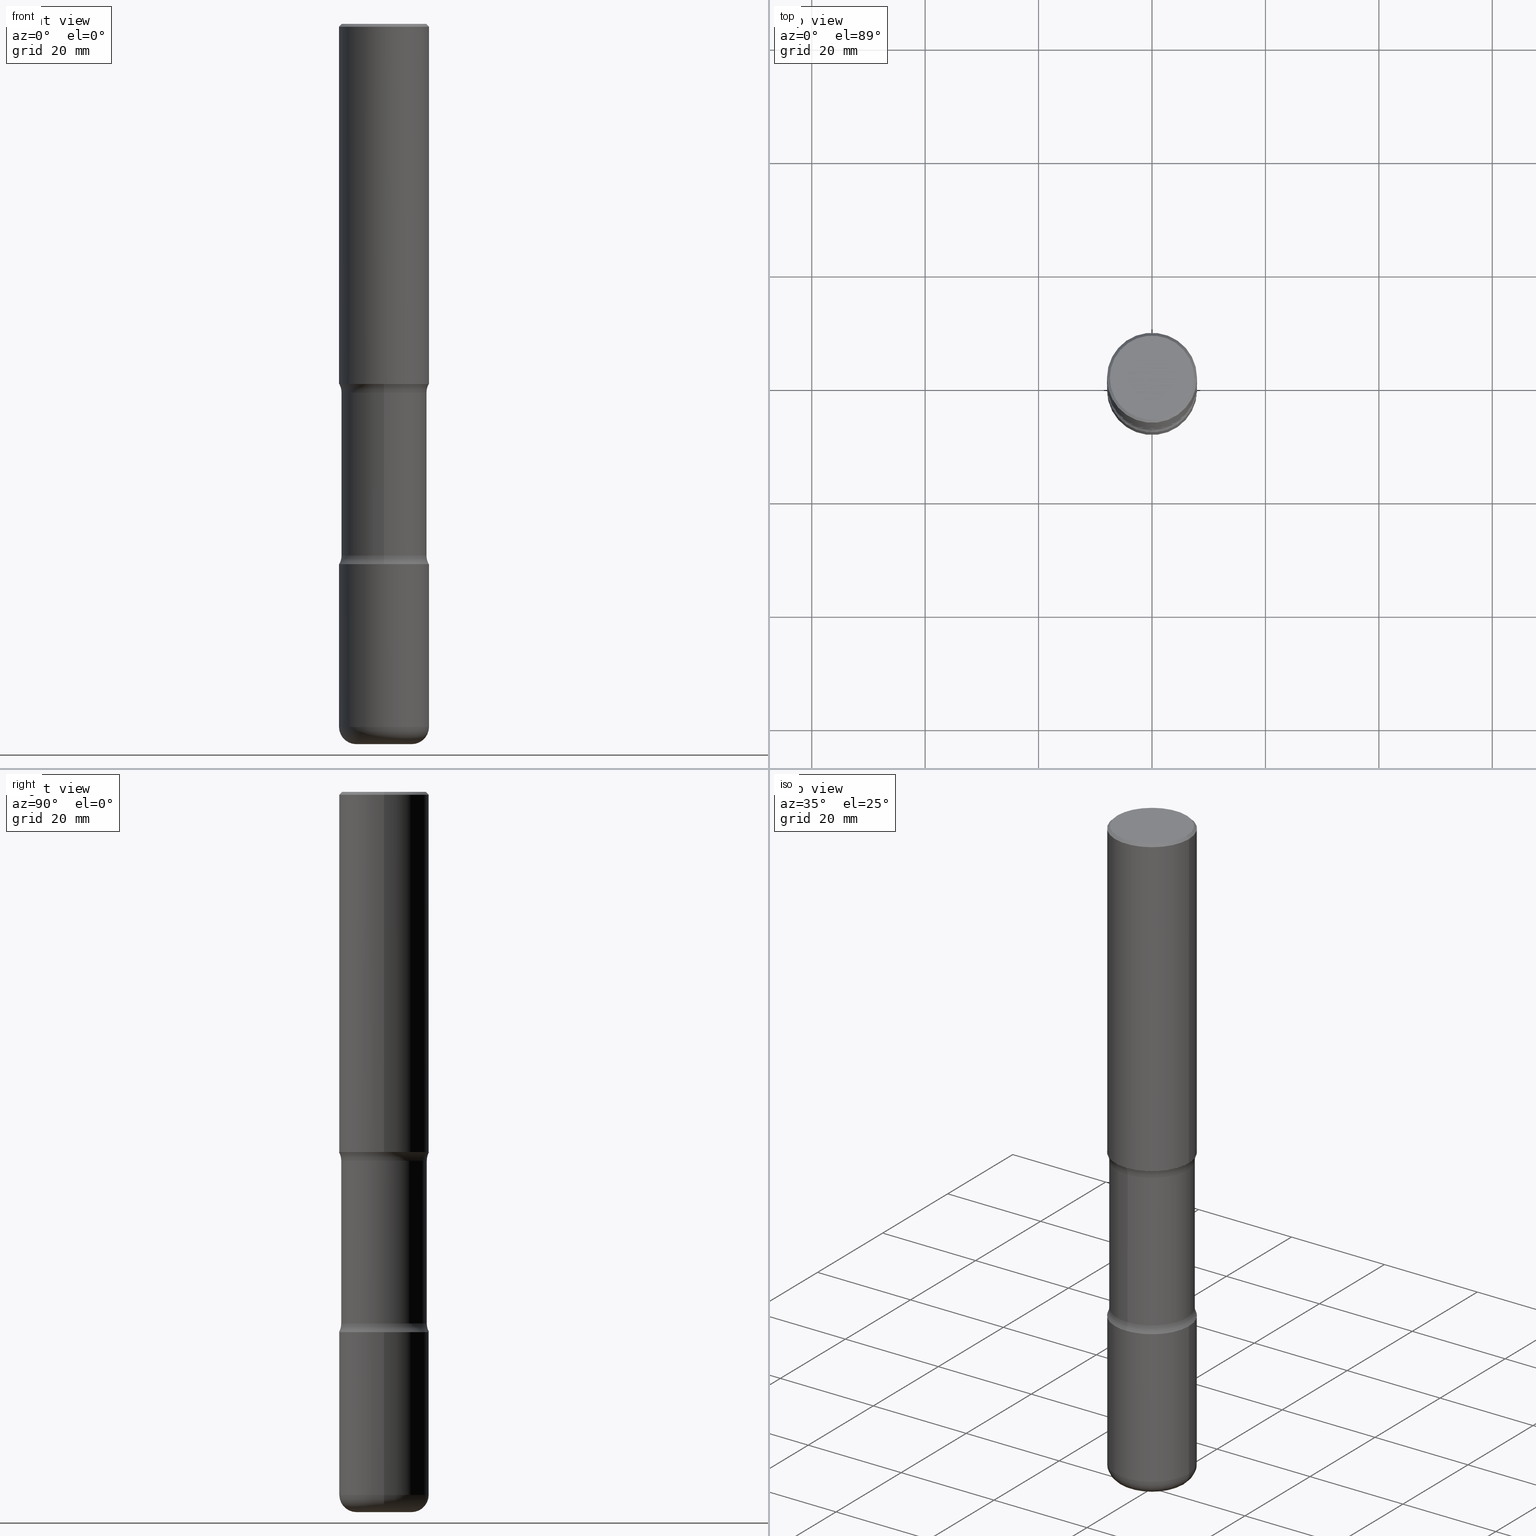
[diagram: canonical four-view strip — front | top / right | iso, engineering-drawing reading convention]
A machine part, canonical four-view strip (front | top / right | iso — engineering-drawing reading convention). The complete STEP part file that produces these views, byte-faithful:
ISO-10303-21;
HEADER;
FILE_DESCRIPTION (( 'STEP AP203' ),
    '1' );
FILE_NAME ('37916.STEP',
    '2024-03-02T01:23:08',
    ( '' ),
    ( '' ),
    'SwSTEP 2.0',
    'SolidWorks 2023',
    '' );
FILE_SCHEMA (( 'CONFIG_CONTROL_DESIGN' ));
ENDSEC;

DATA;
#1 = DIRECTION ( 'NONE',  ( -1.000000000000000000, 6.982962677686265922E-15, -4.876176775795935793E-29 ) ) ;
#2 = EDGE_LOOP ( 'NONE', ( #138, #54, #388, #434 ) ) ;
#3 = CONICAL_SURFACE ( 'NONE', #266, 0.3124999999999998890, 0.7853981633974479459 ) ;
#4 = CIRCLE ( 'NONE', #58, 0.3124999999999998890 ) ;
#5 = DIRECTION ( 'NONE',  ( 1.000000000000000000, -6.860497997771530774E-15, 4.842131541558068249E-29 ) ) ;
#6 = ORIENTED_EDGE ( 'NONE', *, *, #40, .T. ) ;
#7 = DIRECTION ( 'NONE',  ( -2.445468806185136597E-29, 3.491481338843145583E-15, 1.000000000000000000 ) ) ;
#8 = ORIENTED_EDGE ( 'NONE', *, *, #362, .F. ) ;
#9 = DIRECTION ( 'NONE',  ( 7.105427357601001859E-15, 1.000000000000000000, -3.491481338843145583E-15 ) ) ;
#10 = VERTEX_POINT ( 'NONE', #311 ) ;
#11 = AXIS2_PLACEMENT_3D ( 'NONE', #115, #515, #458 ) ;
#12 = DIRECTION ( 'NONE',  ( -0.7071067811865472397, 2.468850131082253905E-15, -0.7071067811865477948 ) ) ;
#13 = AXIS2_PLACEMENT_3D ( 'NONE', #62, #450, #314 ) ;
#14 = ORIENTED_EDGE ( 'NONE', *, *, #188, .F. ) ;
#15 = EDGE_CURVE ( 'NONE', #213, #131, #76, .T. ) ;
#16 = CARTESIAN_POINT ( 'NONE',  ( -2.894272592809803347E-15, -0.4218750000000091593, -2.560515364784489378 ) ) ;
#17 = DIRECTION ( 'NONE',  ( 6.982962677686265133E-15, 1.000000000000000000, -3.496765431890254947E-15 ) ) ;
#18 = CARTESIAN_POINT ( 'NONE',  ( 9.017921104037724021E-29, -1.288835204215942242E-14, -3.689484635215508401 ) ) ;
#19 = CARTESIAN_POINT ( 'NONE',  ( 0.000000000000000000, 0.000000000000000000, 0.000000000000000000 ) ) ;
#20 = ADVANCED_FACE ( 'NONE', ( #402 ), #238, .T. ) ;
#21 = VECTOR ( 'NONE', #168, 39.37007874015748143 ) ;
#22 = CARTESIAN_POINT ( 'NONE',  ( 0.3125000000000000000, -2.182175836776958347E-15, 1.523805242436230075E-29 ) ) ;
#23 =( GEOMETRIC_REPRESENTATION_CONTEXT ( 3 ) GLOBAL_UNCERTAINTY_ASSIGNED_CONTEXT ( ( #285 ) ) GLOBAL_UNIT_ASSIGNED_CONTEXT ( ( #310, #55, #231 ) ) REPRESENTATION_CONTEXT ( 'NONE', 'WORKASPACE' ) );
#24 = APPLICATION_CONTEXT ( 'configuration controlled 3d designs of mechanical parts and assemblies' ) ;
#25 = PERSON_AND_ORGANIZATION ( #323, #556 ) ;
#26 = EDGE_CURVE ( 'NONE', #121, #471, #140, .T. ) ;
#27 = DIRECTION ( 'NONE',  ( 2.445468806185136597E-29, -3.491481338843145583E-15, -1.000000000000000000 ) ) ;
#28 = CALENDAR_DATE ( 2024, 1, 3 ) ;
#29 = DIRECTION ( 'NONE',  ( -2.445468806185136597E-29, 3.491481338843145583E-15, 1.000000000000000000 ) ) ;
#30 = COORDINATED_UNIVERSAL_TIME_OFFSET ( 5, 0, .BEHIND. ) ;
#31 = DIRECTION ( 'NONE',  ( -2.445468806185136597E-29, 3.491481338843145583E-15, 1.000000000000000000 ) ) ;
#32 = VECTOR ( 'NONE', #325, 39.37007874015748143 ) ;
#33 = ORIENTED_EDGE ( 'NONE', *, *, #357, .F. ) ;
#34 = AXIS2_PLACEMENT_3D ( 'NONE', #400, #153, #271 ) ;
#35 = EDGE_CURVE ( 'NONE', #10, #47, #308, .T. ) ;
#36 = DIRECTION ( 'NONE',  ( 1.000000000000000000, -6.982962677686258822E-15, 0.000000000000000000 ) ) ;
#37 = PRODUCT_DEFINITION ( 'UNKNOWN', '', #283, #95 ) ;
#38 = DATE_AND_TIME ( #548, #404 ) ;
#39 = CARTESIAN_POINT ( 'NONE',  ( -0.1925000000000002820, -1.545379740609088424E-14, -5.000000000000000000 ) ) ;
#40 = EDGE_CURVE ( 'NONE', #516, #220, #492, .T. ) ;
#41 = DIRECTION ( 'NONE',  ( -2.445468806185136597E-29, 3.491481338843145583E-15, 1.000000000000000000 ) ) ;
#42 = AXIS2_PLACEMENT_3D ( 'NONE', #259, #226, #349 ) ;
#43 = VECTOR ( 'NONE', #12, 39.37007874015748143 ) ;
#44 = CARTESIAN_POINT ( 'NONE',  ( 4.890937612370289799E-31, -6.982962677686315028E-17, -0.02000000000000006981 ) ) ;
#45 = ORIENTED_EDGE ( 'NONE', *, *, #109, .T. ) ;
#46 = CARTESIAN_POINT ( 'NONE',  ( -0.3124999999999998890, 2.112346210000094260E-15, -0.02000000000000006981 ) ) ;
#47 = VERTEX_POINT ( 'NONE', #241 ) ;
#48 = DIRECTION ( 'NONE',  ( 1.000000000000000000, -6.982962677686269077E-15, 0.000000000000000000 ) ) ;
#49 = ORIENTED_EDGE ( 'NONE', *, *, #179, .F. ) ;
#50 = ADVANCED_FACE ( 'NONE', ( #57 ), #202, .T. ) ;
#51 = CARTESIAN_POINT ( 'NONE',  ( 6.113672015462840371E-29, -8.728703347107863365E-15, -2.499999999999999556 ) ) ;
#52 = ORIENTED_EDGE ( 'NONE', *, *, #64, .T. ) ;
#53 = DIRECTION ( 'NONE',  ( -1.000000000000000000, 6.982962677686266711E-15, 0.000000000000000000 ) ) ;
#54 = ORIENTED_EDGE ( 'NONE', *, *, #225, .F. ) ;
#55 =( NAMED_UNIT ( * ) PLANE_ANGLE_UNIT ( ) SI_UNIT ( $, .RADIAN. ) );
#56 = ADVANCED_FACE ( 'NONE', ( #232 ), #275, .F. ) ;
#57 = FACE_OUTER_BOUND ( 'NONE', #272, .T. ) ;
#58 = AXIS2_PLACEMENT_3D ( 'NONE', #297, #393, #130 ) ;
#59 = DIRECTION ( 'NONE',  ( -2.445468806185136597E-29, 3.491481338843145583E-15, 1.000000000000000000 ) ) ;
#60 = EDGE_LOOP ( 'NONE', ( #439, #525, #301, #268 ) ) ;
#61 = PRODUCT_RELATED_PRODUCT_CATEGORY ( 'detail', '', ( #170 ) ) ;
#62 = CARTESIAN_POINT ( 'NONE',  ( 9.022519586318873617E-29, -1.288176675380345821E-14, -3.689484635215508401 ) ) ;
#63 = DIRECTION ( 'NONE',  ( 6.982962677686265922E-15, 1.000000000000000000, -3.382661233743974681E-15 ) ) ;
#64 = EDGE_CURVE ( 'NONE', #220, #66, #401, .T. ) ;
#65 = CYLINDRICAL_SURFACE ( 'NONE', #78, 0.3125000000000000000 ) ;
#66 = VERTEX_POINT ( 'NONE', #110 ) ;
#67 = DIRECTION ( 'NONE',  ( 1.000000000000000000, -6.982962677686266711E-15, 4.876176775795936353E-29 ) ) ;
#68 = FACE_OUTER_BOUND ( 'NONE', #100, .T. ) ;
#69 = APPROVAL_PERSON_ORGANIZATION ( #419, #251, #368 ) ;
#70 = CARTESIAN_POINT ( 'NONE',  ( -0.3125000000000002220, -2.178820437692046306E-15, -2.499999999999999556 ) ) ;
#71 = APPROVAL_ROLE ( '' ) ;
#72 = DIRECTION ( 'NONE',  ( -6.982962677686266711E-15, -1.000000000000000000, 0.000000000000000000 ) ) ;
#73 = VERTEX_POINT ( 'NONE', #541 ) ;
#74 = PERSON_AND_ORGANIZATION_ROLE ( 'classification_officer' ) ;
#75 = DIRECTION ( 'NONE',  ( -1.000000000000000000, 6.982962677686266711E-15, 0.000000000000000000 ) ) ;
#76 = CIRCLE ( 'NONE', #555, 0.3125000000000002776 ) ;
#77 = ORIENTED_EDGE ( 'NONE', *, *, #26, .F. ) ;
#78 = AXIS2_PLACEMENT_3D ( 'NONE', #19, #186, #67 ) ;
#79 = CARTESIAN_POINT ( 'NONE',  ( 0.3125000000000002220, -2.182175836776959925E-15, 1.523805242436231196E-29 ) ) ;
#80 = EDGE_CURVE ( 'NONE', #478, #73, #278, .T. ) ;
#81 = FACE_OUTER_BOUND ( 'NONE', #347, .T. ) ;
#82 = EDGE_CURVE ( 'NONE', #444, #208, #273, .T. ) ;
#83 = DIRECTION ( 'NONE',  ( 6.982962677686266711E-15, 1.000000000000000000, -3.680805717779217644E-15 ) ) ;
#84 = VERTEX_POINT ( 'NONE', #451 ) ;
#85 = VECTOR ( 'NONE', #212, 39.37007874015748143 ) ;
#86 = CLOSED_SHELL ( 'NONE', ( #552, #495, #386, #391, #50, #96 ) ) ;
#87 = AXIS2_PLACEMENT_3D ( 'NONE', #191, #269, #405 ) ;
#88 = DIRECTION ( 'NONE',  ( 1.000000000000000000, -6.982962677686265922E-15, 4.876176775795935793E-29 ) ) ;
#89 = ORIENTED_EDGE ( 'NONE', *, *, #498, .F. ) ;
#90 = FACE_OUTER_BOUND ( 'NONE', #432, .T. ) ;
#91 = ORIENTED_EDGE ( 'NONE', *, *, #80, .F. ) ;
#92 = ADVANCED_FACE ( 'NONE', ( #68 ), #326, .T. ) ;
#93 = DIRECTION ( 'NONE',  ( 2.521457479434076939E-29, -3.382661233743975076E-15, -1.000000000000000000 ) ) ;
#94 = VERTEX_POINT ( 'NONE', #39 ) ;
#95 = DESIGN_CONTEXT ( 'detailed design', #24, 'design' ) ;
#96 = ADVANCED_FACE ( 'NONE', ( #332 ), #460, .F. ) ;
#97 = AXIS2_PLACEMENT_3D ( 'NONE', #219, #129, #521 ) ;
#98 = AXIS2_PLACEMENT_3D ( 'NONE', #102, #150, #196 ) ;
#99 = CYLINDRICAL_SURFACE ( 'NONE', #161, 0.2968750000000000000 ) ;
#100 = EDGE_LOOP ( 'NONE', ( #105, #77, #397, #560 ) ) ;
#101 = EDGE_CURVE ( 'NONE', #471, #73, #286, .T. ) ;
#102 = CARTESIAN_POINT ( 'NONE',  ( 0.000000000000000000, 0.000000000000000000, 0.000000000000000000 ) ) ;
#103 = DIRECTION ( 'NONE',  ( 2.521457479434076939E-29, -3.382661233743975076E-15, -1.000000000000000000 ) ) ;
#104 = LENGTH_MEASURE_WITH_UNIT ( LENGTH_MEASURE( 0.02539999999999999897 ), #318 );
#105 = ORIENTED_EDGE ( 'NONE', *, *, #101, .F. ) ;
#106 = CIRCLE ( 'NONE', #500, 0.1925000000000002820 ) ;
#107 = AXIS2_PLACEMENT_3D ( 'NONE', #133, #7, #48 ) ;
#108 = ORIENTED_EDGE ( 'NONE', *, *, #82, .F. ) ;
#109 = EDGE_CURVE ( 'NONE', #84, #208, #355, .T. ) ;
#110 = CARTESIAN_POINT ( 'NONE',  ( 2.073067044938200360E-15, 0.2968749999999871214, -3.689484635215509289 ) ) ;
#111 = DIRECTION ( 'NONE',  ( 6.860497997771529985E-15, 1.000000000000000000, 0.000000000000000000 ) ) ;
#112 = DIRECTION ( 'NONE',  ( -6.982962677686266711E-15, -1.000000000000000000, 3.491481338843145583E-15 ) ) ;
#113 = PERSON_AND_ORGANIZATION_ROLE ( 'creator' ) ;
#114 = AXIS2_PLACEMENT_3D ( 'NONE', #367, #112, #280 ) ;
#115 = CARTESIAN_POINT ( 'NONE',  ( 9.170508023194261117E-29, -1.309305502066179584E-14, -3.749999999999999556 ) ) ;
#116 = AXIS2_PLACEMENT_3D ( 'NONE', #488, #448, #409 ) ;
#117 = APPROVAL_STATUS ( 'not_yet_approved' ) ;
#118 = EDGE_CURVE ( 'NONE', #192, #363, #385, .T. ) ;
#119 = DIRECTION ( 'NONE',  ( -1.000000000000000000, 6.982962677686265922E-15, -4.883557194083112340E-29 ) ) ;
#120 = CARTESIAN_POINT ( 'NONE',  ( 0.000000000000000000, 0.000000000000000000, 0.000000000000000000 ) ) ;
#121 = VERTEX_POINT ( 'NONE', #553 ) ;
#122 = COORDINATED_UNIVERSAL_TIME_OFFSET ( 5, 0, .BEHIND. ) ;
#123 = CARTESIAN_POINT ( 'NONE',  ( 9.017921104037724021E-29, -1.288835204215942242E-14, -3.689484635215508401 ) ) ;
#124 = TOROIDAL_SURFACE ( 'NONE', #97, 0.4218750000000000555, 0.1250000000000000000 ) ;
#125 = AXIS2_PLACEMENT_3D ( 'NONE', #135, #351, #173 ) ;
#126 = DATE_TIME_ROLE ( 'classification_date' ) ;
#127 = CARTESIAN_POINT ( 'NONE',  ( 9.170508023194261117E-29, -1.309305502066179584E-14, -3.749999999999999556 ) ) ;
#128 = ORIENTED_EDGE ( 'NONE', *, *, #545, .T. ) ;
#129 = DIRECTION ( 'NONE',  ( 2.521457479434076939E-29, -3.382661233743975076E-15, -1.000000000000000000 ) ) ;
#130 = DIRECTION ( 'NONE',  ( 1.000000000000000000, -6.982962677686266711E-15, 0.000000000000000000 ) ) ;
#131 = VERTEX_POINT ( 'NONE', #506 ) ;
#132 = CIRCLE ( 'NONE', #364, 0.1250000000000000000 ) ;
#133 = CARTESIAN_POINT ( 'NONE',  ( 1.193388777418346668E-28, -1.703842893355455010E-14, -4.880000000000000782 ) ) ;
#134 = ORIENTED_EDGE ( 'NONE', *, *, #240, .T. ) ;
#135 = CARTESIAN_POINT ( 'NONE',  ( 6.113672015462840371E-29, -8.728703347107863365E-15, -2.499999999999999556 ) ) ;
#136 = EDGE_LOOP ( 'NONE', ( #544, #344 ) ) ;
#137 = CARTESIAN_POINT ( 'NONE',  ( -2.894272592809775342E-15, -0.4218750000000130451, -3.689484635215506625 ) ) ;
#138 = ORIENTED_EDGE ( 'NONE', *, *, #545, .F. ) ;
#139 = EDGE_CURVE ( 'NONE', #363, #73, #547, .T. ) ;
#140 = CIRCLE ( 'NONE', #421, 0.2924999999999998157 ) ;
#141 = LOCAL_TIME ( 20, 23, 8.000000000000000000, #205 ) ;
#142 = ORIENTED_EDGE ( 'NONE', *, *, #374, .T. ) ;
#143 = EDGE_CURVE ( 'NONE', #66, #220, #345, .T. ) ;
#144 = DIRECTION ( 'NONE',  ( -1.000000000000000000, 7.105427357600997914E-15, 0.000000000000000000 ) ) ;
#145 = DIRECTION ( 'NONE',  ( 6.982962677686266711E-15, 1.000000000000000000, -3.680805717779217644E-15 ) ) ;
#146 = APPLICATION_CONTEXT ( 'configuration controlled 3d designs of mechanical parts and assemblies' ) ;
#147 = DIRECTION ( 'NONE',  ( 1.000000000000000000, -6.982962677686266711E-15, 4.876067333457692840E-29 ) ) ;
#148 = CLOSED_SHELL ( 'NONE', ( #481, #322, #92, #331, #276, #510 ) ) ;
#149 = AXIS2_PLACEMENT_3D ( 'NONE', #389, #93, #181 ) ;
#150 = DIRECTION ( 'NONE',  ( -2.445468806185136597E-29, 3.491481338843145583E-15, 1.000000000000000000 ) ) ;
#151 = CARTESIAN_POINT ( 'NONE',  ( 0.000000000000000000, 0.000000000000000000, 0.000000000000000000 ) ) ;
#152 = ADVANCED_BREP_SHAPE_REPRESENTATION ( '37916', ( #180, #358, #550, #309 ), #23 ) ;
#153 = DIRECTION ( 'NONE',  ( -2.445468806185136597E-29, 3.491481338843145583E-15, 1.000000000000000000 ) ) ;
#154 = ORIENTED_EDGE ( 'NONE', *, *, #109, .F. ) ;
#155 = CALENDAR_DATE ( 2024, 1, 3 ) ;
#156 = DIRECTION ( 'NONE',  ( 2.521457479434076939E-29, -3.382661233743975076E-15, -1.000000000000000000 ) ) ;
#157 = PERSON_AND_ORGANIZATION_ROLE ( 'design_owner' ) ;
#158 = AXIS2_PLACEMENT_3D ( 'NONE', #151, #319, #313 ) ;
#159 = AXIS2_PLACEMENT_3D ( 'NONE', #366, #445, #496 ) ;
#160 = DIRECTION ( 'NONE',  ( 1.000000000000000000, -6.982962677686269077E-15, 0.000000000000000000 ) ) ;
#161 = AXIS2_PLACEMENT_3D ( 'NONE', #267, #438, #83 ) ;
#162 = APPROVAL_DATE_TIME ( #38, #440 ) ;
#163 = CARTESIAN_POINT ( 'NONE',  ( 0.3124999999999998890, -2.213735251080466123E-15, -0.02000000000000006981 ) ) ;
#164 = APPROVAL_DATE_TIME ( #551, #528 ) ;
#165 = EDGE_CURVE ( 'NONE', #84, #218, #329, .T. ) ;
#166 = CARTESIAN_POINT ( 'NONE',  ( -0.3125000000000002220, 2.220446049250314659E-15, -1.537167215704659073E-29 ) ) ;
#167 = ORIENTED_EDGE ( 'NONE', *, *, #82, .T. ) ;
#168 = DIRECTION ( 'NONE',  ( -2.445468806185136877E-29, 3.491481338843145188E-15, 1.000000000000000000 ) ) ;
#169 = AXIS2_PLACEMENT_3D ( 'NONE', #396, #526, #557 ) ;
#170 = PRODUCT ( '37916', '37916', '', ( #295 ) ) ;
#171 = ORIENTED_EDGE ( 'NONE', *, *, #542, .T. ) ;
#172 = CIRCLE ( 'NONE', #258, 0.1199999999999998845 ) ;
#173 = DIRECTION ( 'NONE',  ( 1.000000000000000000, -6.982962677686266711E-15, 0.000000000000000000 ) ) ;
#174 = ORIENTED_EDGE ( 'NONE', *, *, #558, .T. ) ;
#175 = ORIENTED_EDGE ( 'NONE', *, *, #254, .T. ) ;
#176 = ORIENTED_EDGE ( 'NONE', *, *, #542, .F. ) ;
#177 = VECTOR ( 'NONE', #424, 39.37007874015748143 ) ;
#178 = TOROIDAL_SURFACE ( 'NONE', #13, 0.4218750000000001110, 0.1250000000000001388 ) ;
#179 = EDGE_CURVE ( 'NONE', #350, #213, #132, .T. ) ;
#180 = MANIFOLD_SOLID_BREP ( 'Body-Move/Copy2[1]', #86 ) ;
#181 = DIRECTION ( 'NONE',  ( 6.982962677686266711E-15, 1.000000000000000000, -3.680805717779217644E-15 ) ) ;
#182 = EDGE_LOOP ( 'NONE', ( #236, #476, #265, #250 ) ) ;
#183 = PLANE ( 'NONE',  #336 ) ;
#184 = ADVANCED_FACE ( 'NONE', ( #499 ), #189, .F. ) ;
#185 = ORIENTED_EDGE ( 'NONE', *, *, #188, .T. ) ;
#186 = DIRECTION ( 'NONE',  ( -2.445468806185136597E-29, 3.491481338843145583E-15, 1.000000000000000000 ) ) ;
#187 = EDGE_LOOP ( 'NONE', ( #185, #230 ) ) ;
#188 = EDGE_CURVE ( 'NONE', #399, #218, #452, .T. ) ;
#189 = TOROIDAL_SURFACE ( 'NONE', #223, 0.4218750000000000555, 0.1250000000000000000 ) ;
#190 = APPROVAL_PERSON_ORGANIZATION ( #376, #440, #71 ) ;
#191 = CARTESIAN_POINT ( 'NONE',  ( 1.222734403092568523E-28, -1.745740669421572989E-14, -5.000000000000000000 ) ) ;
#192 = VERTEX_POINT ( 'NONE', #70 ) ;
#193 = FACE_OUTER_BOUND ( 'NONE', #182, .T. ) ;
#194 = CARTESIAN_POINT ( 'NONE',  ( -2.036710343088299976E-15, -0.2968750000000173195, -4.999999999999999112 ) ) ;
#195 = EDGE_CURVE ( 'NONE', #47, #10, #443, .T. ) ;
#196 = DIRECTION ( 'NONE',  ( 1.000000000000000000, -6.982962677686266711E-15, 4.876176775795936353E-29 ) ) ;
#197 = DIRECTION ( 'NONE',  ( -2.445468806185136597E-29, 3.491481338843145583E-15, 1.000000000000000000 ) ) ;
#198 = AXIS2_PLACEMENT_3D ( 'NONE', #414, #27, #75 ) ;
#199 = AXIS2_PLACEMENT_3D ( 'NONE', #533, #59, #442 ) ;
#200 = CARTESIAN_POINT ( 'NONE',  ( -0.3124999999999998890, 2.112346210000094260E-15, -0.02000000000000006981 ) ) ;
#201 = DIRECTION ( 'NONE',  ( -2.445468806185136877E-29, 3.491481338843145188E-15, 1.000000000000000000 ) ) ;
#202 = CYLINDRICAL_SURFACE ( 'NONE', #158, 0.3125000000000002220 ) ;
#203 = DATE_AND_TIME ( #28, #216 ) ;
#204 = LINE ( 'NONE', #252, #177 ) ;
#205 = COORDINATED_UNIVERSAL_TIME_OFFSET ( 5, 0, .BEHIND. ) ;
#206 = AXIS2_PLACEMENT_3D ( 'NONE', #406, #449, #17 ) ;
#207 = CARTESIAN_POINT ( 'NONE',  ( 4.890937612370289799E-31, -6.982962677686315028E-17, -0.02000000000000006981 ) ) ;
#208 = VERTEX_POINT ( 'NONE', #210 ) ;
#209 = PERSON_AND_ORGANIZATION ( #323, #556 ) ;
#210 = CARTESIAN_POINT ( 'NONE',  ( 0.3125000000000002220, -1.922060477033151318E-14, -4.880000000000000782 ) ) ;
#211 = CC_DESIGN_PERSON_AND_ORGANIZATION_ASSIGNMENT ( #25, #113, ( #37 ) ) ;
#212 = DIRECTION ( 'NONE',  ( -2.445468806185136877E-29, 3.491481338843145188E-15, 1.000000000000000000 ) ) ;
#213 = VERTEX_POINT ( 'NONE', #549 ) ;
#214 = CARTESIAN_POINT ( 'NONE',  ( 1.193388777418346668E-28, -1.703842893355455010E-14, -4.880000000000000782 ) ) ;
#215 = CIRCLE ( 'NONE', #512, 0.2968750000000000000 ) ;
#216 = LOCAL_TIME ( 20, 23, 8.000000000000000000, #30 ) ;
#217 = DIRECTION ( 'NONE',  ( 2.438088387897960049E-29, -3.491481338843145188E-15, -1.000000000000000000 ) ) ;
#218 = VERTEX_POINT ( 'NONE', #417 ) ;
#219 = CARTESIAN_POINT ( 'NONE',  ( 6.166278489433880529E-29, -9.076584013649411488E-15, -2.560515364784490711 ) ) ;
#220 = VERTEX_POINT ( 'NONE', #383 ) ;
#221 = CARTESIAN_POINT ( 'NONE',  ( 0.3125000000000001665, -1.527523085743875418E-14, -3.749999999999999556 ) ) ;
#222 = ORIENTED_EDGE ( 'NONE', *, *, #474, .F. ) ;
#223 = AXIS2_PLACEMENT_3D ( 'NONE', #377, #456, #289 ) ;
#224 = TOROIDAL_SURFACE ( 'NONE', #293, 0.1925000000000002820, 0.1199999999999999123 ) ;
#225 = EDGE_CURVE ( 'NONE', #350, #516, #215, .T. ) ;
#226 = DIRECTION ( 'NONE',  ( -2.445468806185136597E-29, 3.491481338843145583E-15, 1.000000000000000000 ) ) ;
#227 = ORIENTED_EDGE ( 'NONE', *, *, #518, .F. ) ;
#228 = CC_DESIGN_PERSON_AND_ORGANIZATION_ASSIGNMENT ( #459, #157, ( #170 ) ) ;
#229 = FACE_OUTER_BOUND ( 'NONE', #369, .T. ) ;
#230 = ORIENTED_EDGE ( 'NONE', *, *, #498, .T. ) ;
#231 =( NAMED_UNIT ( * ) SI_UNIT ( $, .STERADIAN. ) SOLID_ANGLE_UNIT ( ) );
#232 = FACE_OUTER_BOUND ( 'NONE', #361, .T. ) ;
#233 = VECTOR ( 'NONE', #201, 39.37007874015748143 ) ;
#234 = CC_DESIGN_APPROVAL ( #528, ( #356 ) ) ;
#235 = DIRECTION ( 'NONE',  ( 6.982962677686265922E-15, 1.000000000000000000, -3.496765431890253764E-15 ) ) ;
#236 = ORIENTED_EDGE ( 'NONE', *, *, #282, .F. ) ;
#237 = FACE_OUTER_BOUND ( 'NONE', #60, .T. ) ;
#238 = CYLINDRICAL_SURFACE ( 'NONE', #335, 0.2968750000000000000 ) ;
#239 = SECURITY_CLASSIFICATION_LEVEL ( 'unclassified' ) ;
#240 = EDGE_CURVE ( 'NONE', #94, #444, #106, .T. ) ;
#241 = CARTESIAN_POINT ( 'NONE',  ( -2.143905624303512894E-15, -0.3125000000000132672, -3.749999999999998668 ) ) ;
#242 = EDGE_CURVE ( 'NONE', #208, #399, #465, .T. ) ;
#243 = DIRECTION ( 'NONE',  ( 2.521457479434076939E-29, -3.382661233743975076E-15, -1.000000000000000000 ) ) ;
#244 = COORDINATED_UNIVERSAL_TIME_OFFSET ( 5, 0, .BEHIND. ) ;
#245 = DIRECTION ( 'NONE',  ( -2.445468806185136597E-29, 3.491481338843145583E-15, 1.000000000000000000 ) ) ;
#246 = EDGE_LOOP ( 'NONE', ( #527, #507, #425, #91 ) ) ;
#247 = CALENDAR_DATE ( 2024, 1, 3 ) ;
#248 = CIRCLE ( 'NONE', #42, 0.2924999999999998157 ) ;
#249 = CARTESIAN_POINT ( 'NONE',  ( 9.170508023194261117E-29, -1.309305502066179584E-14, -3.749999999999999556 ) ) ;
#250 = ORIENTED_EDGE ( 'NONE', *, *, #143, .T. ) ;
#251 = APPROVAL ( #117, 'UNSPECIFIED' ) ;
#252 = CARTESIAN_POINT ( 'NONE',  ( 2.073067044938233492E-15, 0.2968749999999827360, -5.000000000000000888 ) ) ;
#253 = DIRECTION ( 'NONE',  ( 6.982962677686266711E-15, 1.000000000000000000, -3.680805717779217644E-15 ) ) ;
#254 = EDGE_CURVE ( 'NONE', #350, #66, #204, .T. ) ;
#255 = CARTESIAN_POINT ( 'NONE',  ( 0.2924999999999998157, -2.110215457714318748E-15, 4.268512490114932791E-18 ) ) ;
#256 = AXIS2_PLACEMENT_3D ( 'NONE', #343, #217, #1 ) ;
#257 = ORIENTED_EDGE ( 'NONE', *, *, #40, .F. ) ;
#258 = AXIS2_PLACEMENT_3D ( 'NONE', #490, #9, #144 ) ;
#259 = CARTESIAN_POINT ( 'NONE',  ( -1.043851414335219820E-46, 1.490343170380447200E-32, 4.268512490100411279E-18 ) ) ;
#260 = ADVANCED_FACE ( 'NONE', ( #337 ), #546, .F. ) ;
#261 = ORIENTED_EDGE ( 'NONE', *, *, #290, .F. ) ;
#262 = DIRECTION ( 'NONE',  ( -2.445468806185136597E-29, 3.491481338843145583E-15, 1.000000000000000000 ) ) ;
#263 = ORIENTED_EDGE ( 'NONE', *, *, #558, .F. ) ;
#264 = CARTESIAN_POINT ( 'NONE',  ( 6.113672015462840371E-29, -8.728703347107863365E-15, -2.499999999999999556 ) ) ;
#265 = ORIENTED_EDGE ( 'NONE', *, *, #474, .T. ) ;
#266 = AXIS2_PLACEMENT_3D ( 'NONE', #44, #431, #53 ) ;
#267 = CARTESIAN_POINT ( 'NONE',  ( 1.232232987248685960E-28, -1.732138156284176685E-14, -5.000000000000000000 ) ) ;
#268 = ORIENTED_EDGE ( 'NONE', *, *, #139, .F. ) ;
#269 = DIRECTION ( 'NONE',  ( -2.445468806185136597E-29, 3.491481338843145583E-15, 1.000000000000000000 ) ) ;
#270 = CARTESIAN_POINT ( 'NONE',  ( 1.232232987248685960E-28, -1.732138156284176685E-14, -5.000000000000000000 ) ) ;
#271 = DIRECTION ( 'NONE',  ( 1.000000000000000000, -6.982962677686265133E-15, 0.000000000000000000 ) ) ;
#272 = EDGE_LOOP ( 'NONE', ( #291, #45, #395, #89 ) ) ;
#273 = CIRCLE ( 'NONE', #114, 0.1199999999999998845 ) ;
#274 = CIRCLE ( 'NONE', #159, 0.3125000000000002776 ) ;
#275 = PLANE ( 'NONE',  #316 ) ;
#276 = ADVANCED_FACE ( 'NONE', ( #81 ), #299, .F. ) ;
#277 = CARTESIAN_POINT ( 'NONE',  ( -2.090307983695953569E-15, -0.2968750000000091038, -2.560515364784489822 ) ) ;
#278 = LINE ( 'NONE', #22, #233 ) ;
#279 = FACE_OUTER_BOUND ( 'NONE', #352, .T. ) ;
#280 = DIRECTION ( 'NONE',  ( 1.000000000000000000, -6.982962677686274599E-15, 0.000000000000000000 ) ) ;
#281 = AXIS2_PLACEMENT_3D ( 'NONE', #137, #5, #559 ) ;
#282 = EDGE_CURVE ( 'NONE', #47, #220, #491, .T. ) ;
#283 = PRODUCT_DEFINITION_FORMATION_WITH_SPECIFIED_SOURCE ( 'ANY', '', #170, .NOT_KNOWN. ) ;
#284 = DIRECTION ( 'NONE',  ( 1.000000000000000000, -6.982962677686266711E-15, 0.000000000000000000 ) ) ;
#285 = UNCERTAINTY_MEASURE_WITH_UNIT (LENGTH_MEASURE( 1.000000000000000082E-05 ), #310, 'distance_accuracy_value', 'NONE');
#286 = LINE ( 'NONE', #163, #392 ) ;
#287 = ORIENTED_EDGE ( 'NONE', *, *, #143, .F. ) ;
#288 = PERSON_AND_ORGANIZATION_ROLE ( 'design_supplier' ) ;
#289 = DIRECTION ( 'NONE',  ( 6.982962677686265922E-15, 1.000000000000000000, -3.382661233743975076E-15 ) ) ;
#290 = EDGE_CURVE ( 'NONE', #471, #121, #248, .T. ) ;
#291 = ORIENTED_EDGE ( 'NONE', *, *, #165, .F. ) ;
#292 = AXIS2_PLACEMENT_3D ( 'NONE', #127, #296, #469 ) ;
#293 = AXIS2_PLACEMENT_3D ( 'NONE', #360, #312, #540 ) ;
#294 = CARTESIAN_POINT ( 'NONE',  ( 9.170508023194261117E-29, -1.309305502066179584E-14, -3.749999999999999556 ) ) ;
#295 = MECHANICAL_CONTEXT ( 'NONE', #146, 'mechanical' ) ;
#296 = DIRECTION ( 'NONE',  ( -2.521457479434076939E-29, 3.382661233743974681E-15, 1.000000000000000000 ) ) ;
#297 = CARTESIAN_POINT ( 'NONE',  ( 4.890937612370289799E-31, -6.982962677686315028E-17, -0.02000000000000006981 ) ) ;
#298 = AXIS2_PLACEMENT_3D ( 'NONE', #207, #245, #284 ) ;
#299 = PLANE ( 'NONE',  #529 ) ;
#300 = LOCAL_TIME ( 20, 23, 8.000000000000000000, #122 ) ;
#301 = ORIENTED_EDGE ( 'NONE', *, *, #80, .T. ) ;
#302 = DIRECTION ( 'NONE',  ( -1.000000000000000000, 6.982962677686265922E-15, -4.876176775795935793E-29 ) ) ;
#303 = ORIENTED_EDGE ( 'NONE', *, *, #240, .F. ) ;
#304 = FACE_OUTER_BOUND ( 'NONE', #372, .T. ) ;
#305 = ORIENTED_EDGE ( 'NONE', *, *, #524, .T. ) ;
#306 = DIRECTION ( 'NONE',  ( -2.445468806185136597E-29, 3.491481338843145583E-15, 1.000000000000000000 ) ) ;
#307 = ORIENTED_EDGE ( 'NONE', *, *, #225, .T. ) ;
#308 = CIRCLE ( 'NONE', #206, 0.3125000000000001665 ) ;
#309 = AXIS2_PLACEMENT_3D ( 'NONE', #120, #543, #370 ) ;
#310 =( CONVERSION_BASED_UNIT ( 'INCH', #104 ) LENGTH_UNIT ( ) NAMED_UNIT ( #338 ) );
#311 = CARTESIAN_POINT ( 'NONE',  ( 2.182175836777050644E-15, 0.3124999999999870104, -3.750000000000000888 ) ) ;
#312 = DIRECTION ( 'NONE',  ( -2.445468806185136597E-29, 3.491481338843145583E-15, 1.000000000000000000 ) ) ;
#313 = DIRECTION ( 'NONE',  ( 1.000000000000000000, -6.982962677686266711E-15, 4.876176775795936353E-29 ) ) ;
#314 = DIRECTION ( 'NONE',  ( 6.982962677686265922E-15, 1.000000000000000000, -3.382661233743975076E-15 ) ) ;
#315 = DIRECTION ( 'NONE',  ( 2.521457479434076939E-29, -3.382661233743974681E-15, -1.000000000000000000 ) ) ;
#316 = AXIS2_PLACEMENT_3D ( 'NONE', #410, #407, #63 ) ;
#317 = AXIS2_PLACEMENT_3D ( 'NONE', #51, #306, #482 ) ;
#318 =( LENGTH_UNIT ( ) NAMED_UNIT ( * ) SI_UNIT ( $, .METRE. ) );
#319 = DIRECTION ( 'NONE',  ( -2.445468806185136597E-29, 3.491481338843145583E-15, 1.000000000000000000 ) ) ;
#320 = FACE_OUTER_BOUND ( 'NONE', #354, .T. ) ;
#321 = ORIENTED_EDGE ( 'NONE', *, *, #64, .F. ) ;
#322 = ADVANCED_FACE ( 'NONE', ( #304 ), #3, .T. ) ;
#323 = PERSON ( 'UNSPECIFIED', 'UNSPECIFIED', 'UNSPECIFIED', ('UNSPECIFIED'), ('UNSPECIFIED'), ('UNSPECIFIED') ) ;
#324 = DATE_AND_TIME ( #155, #141 ) ;
#325 = DIRECTION ( 'NONE',  ( -2.445468806185136877E-29, 3.491481338843145188E-15, 1.000000000000000000 ) ) ;
#326 = CONICAL_SURFACE ( 'NONE', #198, 0.3124999999999998890, 0.7853981633974479459 ) ;
#327 = CIRCLE ( 'NONE', #116, 0.1250000000000001388 ) ;
#328 = APPLICATION_PROTOCOL_DEFINITION ( 'international standard', 'config_control_design', 1994, #146 ) ;
#329 = LINE ( 'NONE', #166, #32 ) ;
#330 = PERSON_AND_ORGANIZATION ( #323, #556 ) ;
#331 = ADVANCED_FACE ( 'NONE', ( #479 ), #475, .F. ) ;
#332 = FACE_OUTER_BOUND ( 'NONE', #187, .T. ) ;
#333 = DIRECTION ( 'NONE',  ( 6.982962677686265133E-15, 1.000000000000000000, -3.496765431890254947E-15 ) ) ;
#334 = DATE_TIME_ROLE ( 'creation_date' ) ;
#335 = AXIS2_PLACEMENT_3D ( 'NONE', #270, #103, #145 ) ;
#336 = AXIS2_PLACEMENT_3D ( 'NONE', #436, #387, #302 ) ;
#337 = FACE_OUTER_BOUND ( 'NONE', #430, .T. ) ;
#338 = DIMENSIONAL_EXPONENTS ( 1.000000000000000000, 0.000000000000000000, 0.000000000000000000, 0.000000000000000000, 0.000000000000000000, 0.000000000000000000, 0.000000000000000000 ) ;
#339 = ORIENTED_EDGE ( 'NONE', *, *, #282, .T. ) ;
#340 = ADVANCED_FACE ( 'NONE', ( #229 ), #124, .F. ) ;
#341 = CARTESIAN_POINT ( 'NONE',  ( 1.193388777418346668E-28, -1.703842893355455010E-14, -4.880000000000000782 ) ) ;
#342 = CC_DESIGN_PERSON_AND_ORGANIZATION_ASSIGNMENT ( #330, #505, ( #283 ) ) ;
#343 = CARTESIAN_POINT ( 'NONE',  ( 2.042516583223231356E-15, 0.2924999999999998157, -1.019124035366569212E-15 ) ) ;
#344 = ORIENTED_EDGE ( 'NONE', *, *, #290, .T. ) ;
#345 = CIRCLE ( 'NONE', #373, 0.2968750000000000000 ) ;
#346 = CIRCLE ( 'NONE', #107, 0.3125000000000002776 ) ;
#347 = EDGE_LOOP ( 'NONE', ( #8, #511 ) ) ;
#348 = ADVANCED_FACE ( 'NONE', ( #477 ), #411, .F. ) ;
#349 = DIRECTION ( 'NONE',  ( 1.000000000000000000, -6.982962677686266711E-15, 4.876067333457692840E-29 ) ) ;
#350 = VERTEX_POINT ( 'NONE', #519 ) ;
#351 = DIRECTION ( 'NONE',  ( -2.445468806185136597E-29, 3.491481338843145583E-15, 1.000000000000000000 ) ) ;
#352 = EDGE_LOOP ( 'NONE', ( #142, #535, #14, #390 ) ) ;
#353 = CYLINDRICAL_SURFACE ( 'NONE', #199, 0.3125000000000002220 ) ;
#354 = EDGE_LOOP ( 'NONE', ( #174, #171, #480, #108 ) ) ;
#355 = CIRCLE ( 'NONE', #462, 0.3125000000000002776 ) ;
#356 = SECURITY_CLASSIFICATION ( '', '', #239 ) ;
#357 = EDGE_CURVE ( 'NONE', #516, #350, #394, .T. ) ;
#358 = MANIFOLD_SOLID_BREP ( 'Body-Move/Copy2[2]', #148 ) ;
#359 = ORIENTED_EDGE ( 'NONE', *, *, #101, .T. ) ;
#360 = CARTESIAN_POINT ( 'NONE',  ( 1.193388777418346668E-28, -1.703842893355455010E-14, -4.880000000000000782 ) ) ;
#361 = EDGE_LOOP ( 'NONE', ( #504, #489 ) ) ;
#362 = EDGE_CURVE ( 'NONE', #478, #192, #539, .T. ) ;
#363 = VERTEX_POINT ( 'NONE', #46 ) ;
#364 = AXIS2_PLACEMENT_3D ( 'NONE', #371, #119, #72 ) ;
#365 = CIRCLE ( 'NONE', #87, 0.1925000000000002820 ) ;
#366 = CARTESIAN_POINT ( 'NONE',  ( 6.018686173901665994E-29, -8.864728478481826400E-15, -2.499999999999999556 ) ) ;
#367 = CARTESIAN_POINT ( 'NONE',  ( 0.1925000000000002820, -1.838264924900915991E-14, -4.880000000000000782 ) ) ;
#368 = APPROVAL_ROLE ( '' ) ;
#369 = EDGE_LOOP ( 'NONE', ( #33, #128, #305, #49 ) ) ;
#370 = DIRECTION ( 'NONE',  ( 1.000000000000000000, 0.000000000000000000, 0.000000000000000000 ) ) ;
#371 = CARTESIAN_POINT ( 'NONE',  ( 2.945937379648955300E-15, 0.4218749999999909517, -2.560515364784492487 ) ) ;
#372 = EDGE_LOOP ( 'NONE', ( #261, #359, #522, #227 ) ) ;
#373 = AXIS2_PLACEMENT_3D ( 'NONE', #123, #156, #503 ) ;
#374 = EDGE_CURVE ( 'NONE', #208, #84, #346, .T. ) ;
#375 = CC_DESIGN_SECURITY_CLASSIFICATION ( #356, ( #283 ) ) ;
#376 = PERSON_AND_ORGANIZATION ( #323, #556 ) ;
#377 = CARTESIAN_POINT ( 'NONE',  ( 6.166278489433880529E-29, -9.076584013649411488E-15, -2.560515364784490711 ) ) ;
#378 = ORIENTED_EDGE ( 'NONE', *, *, #35, .T. ) ;
#379 = CC_DESIGN_DATE_AND_TIME_ASSIGNMENT ( #203, #334, ( #37 ) ) ;
#380 = COORDINATED_UNIVERSAL_TIME_OFFSET ( 5, 0, .BEHIND. ) ;
#381 = DIRECTION ( 'NONE',  ( 0.7071067811865472397, -7.319954787623254468E-15, -0.7071067811865477948 ) ) ;
#382 = CALENDAR_DATE ( 2024, 1, 3 ) ;
#383 = CARTESIAN_POINT ( 'NONE',  ( -2.090307983695922804E-15, -0.2968750000000128786, -3.689484635215507069 ) ) ;
#384 = CLOSED_SHELL ( 'NONE', ( #455, #348, #340, #184, #56, #260, #485, #20 ) ) ;
#385 = LINE ( 'NONE', #426, #85 ) ;
#386 = ADVANCED_FACE ( 'NONE', ( #523 ), #183, .T. ) ;
#387 = DIRECTION ( 'NONE',  ( 2.438088387897960049E-29, -3.491481338843145188E-15, -1.000000000000000000 ) ) ;
#388 = ORIENTED_EDGE ( 'NONE', *, *, #179, .T. ) ;
#389 = CARTESIAN_POINT ( 'NONE',  ( 6.171273093058203090E-29, -9.069431456984199816E-15, -2.560515364784490711 ) ) ;
#390 = ORIENTED_EDGE ( 'NONE', *, *, #242, .F. ) ;
#391 = ADVANCED_FACE ( 'NONE', ( #90 ), #473, .T. ) ;
#392 = VECTOR ( 'NONE', #381, 39.37007874015748143 ) ;
#393 = DIRECTION ( 'NONE',  ( -2.445468806185136597E-29, 3.491481338843145583E-15, 1.000000000000000000 ) ) ;
#394 = CIRCLE ( 'NONE', #149, 0.2968750000000000000 ) ;
#395 = ORIENTED_EDGE ( 'NONE', *, *, #242, .T. ) ;
#396 = CARTESIAN_POINT ( 'NONE',  ( 9.022519586318873617E-29, -1.288176675380345821E-14, -3.689484635215508401 ) ) ;
#397 = ORIENTED_EDGE ( 'NONE', *, *, #518, .T. ) ;
#398 = LINE ( 'NONE', #200, #43 ) ;
#399 = VERTEX_POINT ( 'NONE', #221 ) ;
#400 = CARTESIAN_POINT ( 'NONE',  ( 9.170508023194261117E-29, -1.309305502066179584E-14, -3.749999999999999556 ) ) ;
#401 = CIRCLE ( 'NONE', #435, 0.2968750000000000000 ) ;
#402 = FACE_OUTER_BOUND ( 'NONE', #466, .T. ) ;
#403 = CC_DESIGN_APPROVAL ( #440, ( #283 ) ) ;
#404 = LOCAL_TIME ( 20, 23, 8.000000000000000000, #244 ) ;
#405 = DIRECTION ( 'NONE',  ( 1.000000000000000000, -6.982962677686258822E-15, 0.000000000000000000 ) ) ;
#406 = CARTESIAN_POINT ( 'NONE',  ( 9.170508023194261117E-29, -1.309305502066179584E-14, -3.749999999999999556 ) ) ;
#407 = DIRECTION ( 'NONE',  ( 2.521457479434076939E-29, -3.382661233743974681E-15, -1.000000000000000000 ) ) ;
#408 = CC_DESIGN_PERSON_AND_ORGANIZATION_ASSIGNMENT ( #413, #74, ( #356 ) ) ;
#409 = DIRECTION ( 'NONE',  ( -6.982962677686266711E-15, -1.000000000000000000, 0.000000000000000000 ) ) ;
#410 = CARTESIAN_POINT ( 'NONE',  ( 6.113672015462840371E-29, -8.728703347107863365E-15, -2.499999999999999556 ) ) ;
#411 = TOROIDAL_SURFACE ( 'NONE', #169, 0.4218750000000001110, 0.1250000000000001388 ) ;
#412 = CIRCLE ( 'NONE', #34, 0.3125000000000001665 ) ;
#413 = PERSON_AND_ORGANIZATION ( #323, #556 ) ;
#414 = CARTESIAN_POINT ( 'NONE',  ( 4.890937612370289799E-31, -6.982962677686315028E-17, -0.02000000000000006981 ) ) ;
#415 = APPROVAL_ROLE ( '' ) ;
#416 = PRODUCT_DEFINITION_SHAPE ( 'NONE', 'NONE',  #37 ) ;
#417 = CARTESIAN_POINT ( 'NONE',  ( -0.3125000000000001665, -1.284529592785785752E-14, -3.749999999999999556 ) ) ;
#418 = EDGE_CURVE ( 'NONE', #73, #363, #4, .T. ) ;
#419 = PERSON_AND_ORGANIZATION ( #323, #556 ) ;
#420 = DIRECTION ( 'NONE',  ( 1.000000000000000000, -6.982962677686265133E-15, 0.000000000000000000 ) ) ;
#421 = AXIS2_PLACEMENT_3D ( 'NONE', #497, #197, #147 ) ;
#422 = DATE_AND_TIME ( #247, #300 ) ;
#423 = DIRECTION ( 'NONE',  ( 2.521457479434076939E-29, -3.382661233743975076E-15, -1.000000000000000000 ) ) ;
#424 = DIRECTION ( 'NONE',  ( 2.521457479434076939E-29, -3.382661233743974681E-15, -1.000000000000000000 ) ) ;
#425 = ORIENTED_EDGE ( 'NONE', *, *, #418, .F. ) ;
#426 = CARTESIAN_POINT ( 'NONE',  ( -0.3125000000000000000, 2.220446049250313081E-15, -1.537167215704658232E-29 ) ) ;
#427 = AXIS2_PLACEMENT_3D ( 'NONE', #294, #243, #333 ) ;
#428 = APPROVAL_PERSON_ORGANIZATION ( #209, #528, #415 ) ;
#429 = DIRECTION ( 'NONE',  ( -2.438088387897960049E-29, 3.491481338843145188E-15, 1.000000000000000000 ) ) ;
#430 = EDGE_LOOP ( 'NONE', ( #378, #484 ) ) ;
#431 = DIRECTION ( 'NONE',  ( 2.445468806185136597E-29, -3.491481338843145583E-15, -1.000000000000000000 ) ) ;
#432 = EDGE_LOOP ( 'NONE', ( #176, #134, #167, #154 ) ) ;
#433 = DIRECTION ( 'NONE',  ( 1.000000000000000000, -6.982962677686272233E-15, 4.883557194083114583E-29 ) ) ;
#434 = ORIENTED_EDGE ( 'NONE', *, *, #15, .T. ) ;
#435 = AXIS2_PLACEMENT_3D ( 'NONE', #18, #538, #494 ) ;
#436 = CARTESIAN_POINT ( 'NONE',  ( 1.222734403092568523E-28, -1.745740669421572989E-14, -5.000000000000000000 ) ) ;
#437 = ORIENTED_EDGE ( 'NONE', *, *, #357, .T. ) ;
#438 = DIRECTION ( 'NONE',  ( 2.521457479434076939E-29, -3.382661233743975076E-15, -1.000000000000000000 ) ) ;
#439 = ORIENTED_EDGE ( 'NONE', *, *, #118, .F. ) ;
#440 = APPROVAL ( #468, 'UNSPECIFIED' ) ;
#441 = ORIENTED_EDGE ( 'NONE', *, *, #254, .F. ) ;
#442 = DIRECTION ( 'NONE',  ( 1.000000000000000000, -6.982962677686266711E-15, 4.876176775795936353E-29 ) ) ;
#443 = CIRCLE ( 'NONE', #427, 0.3125000000000001665 ) ;
#444 = VERTEX_POINT ( 'NONE', #517 ) ;
#445 = DIRECTION ( 'NONE',  ( 2.521457479434076939E-29, -3.382661233743975076E-15, -1.000000000000000000 ) ) ;
#446 = EDGE_LOOP ( 'NONE', ( #461, #339, #52, #222 ) ) ;
#447 = EDGE_CURVE ( 'NONE', #192, #478, #463, .T. ) ;
#448 = DIRECTION ( 'NONE',  ( -1.000000000000000000, 6.982962677686265922E-15, -4.883557194083112340E-29 ) ) ;
#449 = DIRECTION ( 'NONE',  ( 2.521457479434076939E-29, -3.382661233743975076E-15, -1.000000000000000000 ) ) ;
#450 = DIRECTION ( 'NONE',  ( 2.521457479434076939E-29, -3.382661233743975076E-15, -1.000000000000000000 ) ) ;
#451 = CARTESIAN_POINT ( 'NONE',  ( -0.3125000000000002220, -1.481798288430423702E-14, -4.880000000000000782 ) ) ;
#452 = CIRCLE ( 'NONE', #537, 0.3125000000000001665 ) ;
#453 = CC_DESIGN_APPROVAL ( #251, ( #37 ) ) ;
#454 = APPROVAL_STATUS ( 'not_yet_approved' ) ;
#455 = ADVANCED_FACE ( 'NONE', ( #470 ), #99, .T. ) ;
#456 = DIRECTION ( 'NONE',  ( 2.521457479434076939E-29, -3.382661233743975076E-15, -1.000000000000000000 ) ) ;
#457 = CC_DESIGN_DATE_AND_TIME_ASSIGNMENT ( #422, #126, ( #356 ) ) ;
#458 = DIRECTION ( 'NONE',  ( -1.000000000000000000, 6.982962677686265922E-15, -4.876176775795935793E-29 ) ) ;
#459 = PERSON_AND_ORGANIZATION ( #323, #556 ) ;
#460 = PLANE ( 'NONE',  #11 ) ;
#461 = ORIENTED_EDGE ( 'NONE', *, *, #195, .F. ) ;
#462 = AXIS2_PLACEMENT_3D ( 'NONE', #214, #31, #160 ) ;
#463 = CIRCLE ( 'NONE', #317, 0.3125000000000002220 ) ;
#464 = SHAPE_DEFINITION_REPRESENTATION ( #416, #152 ) ;
#465 = LINE ( 'NONE', #79, #21 ) ;
#466 = EDGE_LOOP ( 'NONE', ( #257, #437, #175, #321 ) ) ;
#467 = CC_DESIGN_PERSON_AND_ORGANIZATION_ASSIGNMENT ( #514, #288, ( #283 ) ) ;
#468 = APPROVAL_STATUS ( 'not_yet_approved' ) ;
#469 = DIRECTION ( 'NONE',  ( -6.982962677686265922E-15, -1.000000000000000000, 3.382661233743974681E-15 ) ) ;
#470 = FACE_OUTER_BOUND ( 'NONE', #532, .T. ) ;
#471 = VERTEX_POINT ( 'NONE', #255 ) ;
#472 = VECTOR ( 'NONE', #315, 39.37007874015748143 ) ;
#473 = TOROIDAL_SURFACE ( 'NONE', #513, 0.1925000000000002820, 0.1199999999999999123 ) ;
#474 = EDGE_CURVE ( 'NONE', #10, #66, #327, .T. ) ;
#475 = PLANE ( 'NONE',  #256 ) ;
#476 = ORIENTED_EDGE ( 'NONE', *, *, #35, .F. ) ;
#477 = FACE_OUTER_BOUND ( 'NONE', #446, .T. ) ;
#478 = VERTEX_POINT ( 'NONE', #530 ) ;
#479 = FACE_OUTER_BOUND ( 'NONE', #136, .T. ) ;
#480 = ORIENTED_EDGE ( 'NONE', *, *, #374, .F. ) ;
#481 = ADVANCED_FACE ( 'NONE', ( #486 ), #65, .T. ) ;
#482 = DIRECTION ( 'NONE',  ( 1.000000000000000000, -6.982962677686266711E-15, 0.000000000000000000 ) ) ;
#483 = CIRCLE ( 'NONE', #531, 0.1250000000000000000 ) ;
#484 = ORIENTED_EDGE ( 'NONE', *, *, #195, .T. ) ;
#485 = ADVANCED_FACE ( 'NONE', ( #193 ), #178, .F. ) ;
#486 = FACE_OUTER_BOUND ( 'NONE', #246, .T. ) ;
#487 = DIRECTION ( 'NONE',  ( 2.521457479434076939E-29, -3.382661233743975076E-15, -1.000000000000000000 ) ) ;
#488 = CARTESIAN_POINT ( 'NONE',  ( 2.945937379648984488E-15, 0.4218749999999872324, -3.689484635215510178 ) ) ;
#489 = ORIENTED_EDGE ( 'NONE', *, *, #524, .F. ) ;
#490 = CARTESIAN_POINT ( 'NONE',  ( -0.1925000000000002820, -1.567063416721635800E-14, -4.880000000000000782 ) ) ;
#491 = CIRCLE ( 'NONE', #281, 0.1250000000000001388 ) ;
#492 = LINE ( 'NONE', #194, #472 ) ;
#493 = CYLINDRICAL_SURFACE ( 'NONE', #98, 0.3125000000000000000 ) ;
#494 = DIRECTION ( 'NONE',  ( 6.982962677686265133E-15, 1.000000000000000000, -3.680805717779217644E-15 ) ) ;
#495 = ADVANCED_FACE ( 'NONE', ( #320 ), #224, .T. ) ;
#496 = DIRECTION ( 'NONE',  ( 6.982962677686265922E-15, 1.000000000000000000, -3.496765431890253764E-15 ) ) ;
#497 = CARTESIAN_POINT ( 'NONE',  ( -1.043851414335219820E-46, 1.490343170380447200E-32, 4.268512490100411279E-18 ) ) ;
#498 = EDGE_CURVE ( 'NONE', #218, #399, #412, .T. ) ;
#499 = FACE_OUTER_BOUND ( 'NONE', #2, .T. ) ;
#500 = AXIS2_PLACEMENT_3D ( 'NONE', #509, #29, #36 ) ;
#501 = LOCAL_TIME ( 20, 23, 8.000000000000000000, #380 ) ;
#502 = APPLICATION_PROTOCOL_DEFINITION ( 'international standard', 'config_control_design', 1994, #24 ) ;
#503 = DIRECTION ( 'NONE',  ( 6.982962677686265133E-15, 1.000000000000000000, -3.680805717779217644E-15 ) ) ;
#504 = ORIENTED_EDGE ( 'NONE', *, *, #15, .F. ) ;
#505 = PERSON_AND_ORGANIZATION_ROLE ( 'creator' ) ;
#506 = CARTESIAN_POINT ( 'NONE',  ( -2.143905624303545238E-15, -0.3125000000000091593, -2.499999999999998668 ) ) ;
#507 = ORIENTED_EDGE ( 'NONE', *, *, #118, .T. ) ;
#508 = APPROVAL_DATE_TIME ( #324, #251 ) ;
#509 = CARTESIAN_POINT ( 'NONE',  ( 1.222734403092568523E-28, -1.745740669421572989E-14, -5.000000000000000000 ) ) ;
#510 = ADVANCED_FACE ( 'NONE', ( #237 ), #493, .T. ) ;
#511 = ORIENTED_EDGE ( 'NONE', *, *, #447, .F. ) ;
#512 = AXIS2_PLACEMENT_3D ( 'NONE', #554, #423, #253 ) ;
#513 = AXIS2_PLACEMENT_3D ( 'NONE', #341, #262, #433 ) ;
#514 = PERSON_AND_ORGANIZATION ( #323, #556 ) ;
#515 = DIRECTION ( 'NONE',  ( 2.438088387897960049E-29, -3.491481338843145188E-15, -1.000000000000000000 ) ) ;
#516 = VERTEX_POINT ( 'NONE', #277 ) ;
#517 = CARTESIAN_POINT ( 'NONE',  ( 0.1925000000000002820, -1.880162700967033654E-14, -5.000000000000000000 ) ) ;
#518 = EDGE_CURVE ( 'NONE', #121, #363, #398, .T. ) ;
#519 = CARTESIAN_POINT ( 'NONE',  ( 2.073067044938171961E-15, 0.2968749999999909517, -2.560515364784492043 ) ) ;
#520 = EDGE_LOOP ( 'NONE', ( #263, #303 ) ) ;
#521 = DIRECTION ( 'NONE',  ( 6.982962677686265922E-15, 1.000000000000000000, -3.382661233743975076E-15 ) ) ;
#522 = ORIENTED_EDGE ( 'NONE', *, *, #418, .T. ) ;
#523 = FACE_OUTER_BOUND ( 'NONE', #520, .T. ) ;
#524 = EDGE_CURVE ( 'NONE', #131, #213, #274, .T. ) ;
#525 = ORIENTED_EDGE ( 'NONE', *, *, #447, .T. ) ;
#526 = DIRECTION ( 'NONE',  ( 2.521457479434076939E-29, -3.382661233743975076E-15, -1.000000000000000000 ) ) ;
#527 = ORIENTED_EDGE ( 'NONE', *, *, #362, .T. ) ;
#528 = APPROVAL ( #454, 'UNSPECIFIED' ) ;
#529 = AXIS2_PLACEMENT_3D ( 'NONE', #264, #429, #88 ) ;
#530 = CARTESIAN_POINT ( 'NONE',  ( 0.3125000000000002220, -1.091087918388482329E-14, -2.499999999999999556 ) ) ;
#531 = AXIS2_PLACEMENT_3D ( 'NONE', #16, #536, #111 ) ;
#532 = EDGE_LOOP ( 'NONE', ( #307, #6, #287, #441 ) ) ;
#533 = CARTESIAN_POINT ( 'NONE',  ( 0.000000000000000000, 0.000000000000000000, 0.000000000000000000 ) ) ;
#534 = CARTESIAN_POINT ( 'NONE',  ( 6.018686173901665994E-29, -8.864728478481826400E-15, -2.499999999999999556 ) ) ;
#535 = ORIENTED_EDGE ( 'NONE', *, *, #165, .T. ) ;
#536 = DIRECTION ( 'NONE',  ( 1.000000000000000000, -6.860497997771530774E-15, 4.842131541558068249E-29 ) ) ;
#537 = AXIS2_PLACEMENT_3D ( 'NONE', #249, #41, #420 ) ;
#538 = DIRECTION ( 'NONE',  ( 2.521457479434076939E-29, -3.382661233743975076E-15, -1.000000000000000000 ) ) ;
#539 = CIRCLE ( 'NONE', #125, 0.3125000000000002220 ) ;
#540 = DIRECTION ( 'NONE',  ( 1.000000000000000000, -6.982962677686272233E-15, 4.883557194083114583E-29 ) ) ;
#541 = CARTESIAN_POINT ( 'NONE',  ( 0.3124999999999998890, -2.213735251080466123E-15, -0.02000000000000006981 ) ) ;
#542 = EDGE_CURVE ( 'NONE', #94, #84, #172, .T. ) ;
#543 = DIRECTION ( 'NONE',  ( 0.000000000000000000, 0.000000000000000000, 1.000000000000000000 ) ) ;
#544 = ORIENTED_EDGE ( 'NONE', *, *, #26, .T. ) ;
#545 = EDGE_CURVE ( 'NONE', #516, #131, #483, .T. ) ;
#546 = PLANE ( 'NONE',  #292 ) ;
#547 = CIRCLE ( 'NONE', #298, 0.3124999999999998890 ) ;
#548 = CALENDAR_DATE ( 2024, 1, 3 ) ;
#549 = CARTESIAN_POINT ( 'NONE',  ( 2.182175836777019878E-15, 0.3124999999999913958, -2.500000000000000444 ) ) ;
#550 = MANIFOLD_SOLID_BREP ( 'Body-Move/Copy2[4]', #384 ) ;
#551 = DATE_AND_TIME ( #382, #501 ) ;
#552 = ADVANCED_FACE ( 'NONE', ( #279 ), #353, .T. ) ;
#553 = CARTESIAN_POINT ( 'NONE',  ( -0.2924999999999998157, 2.077431396611663005E-15, 4.268512490086005323E-18 ) ) ;
#554 = CARTESIAN_POINT ( 'NONE',  ( 6.171273093058203090E-29, -9.069431456984199816E-15, -2.560515364784490711 ) ) ;
#555 = AXIS2_PLACEMENT_3D ( 'NONE', #534, #487, #235 ) ;
#556 = ORGANIZATION ( 'UNSPECIFIED', 'UNSPECIFIED', '' ) ;
#557 = DIRECTION ( 'NONE',  ( 6.982962677686265922E-15, 1.000000000000000000, -3.382661233743975076E-15 ) ) ;
#558 = EDGE_CURVE ( 'NONE', #444, #94, #365, .T. ) ;
#559 = DIRECTION ( 'NONE',  ( 6.860497997771529985E-15, 1.000000000000000000, 0.000000000000000000 ) ) ;
#560 = ORIENTED_EDGE ( 'NONE', *, *, #139, .T. ) ;
ENDSEC;
END-ISO-10303-21;
